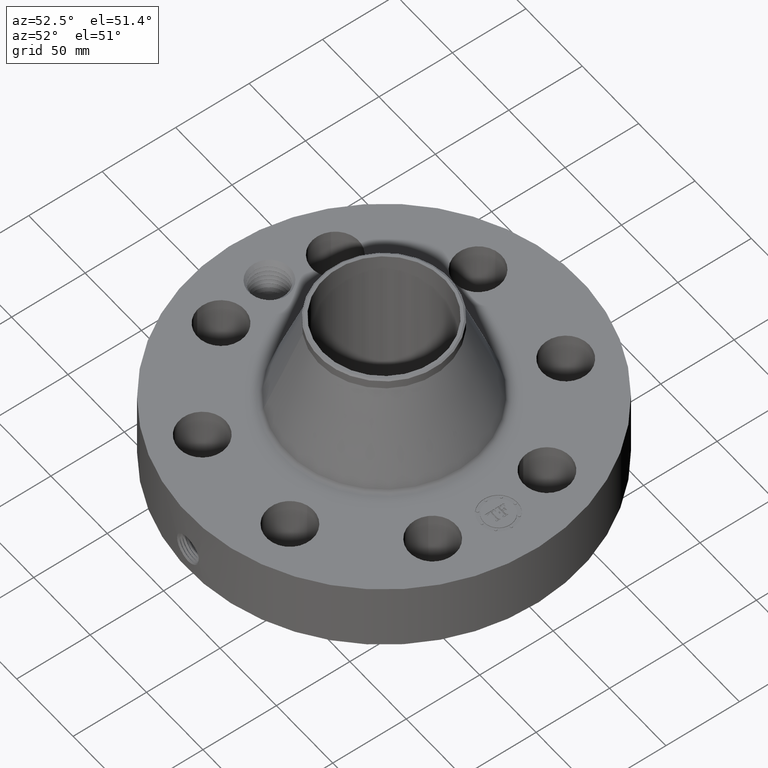
[diagram: clean part render]
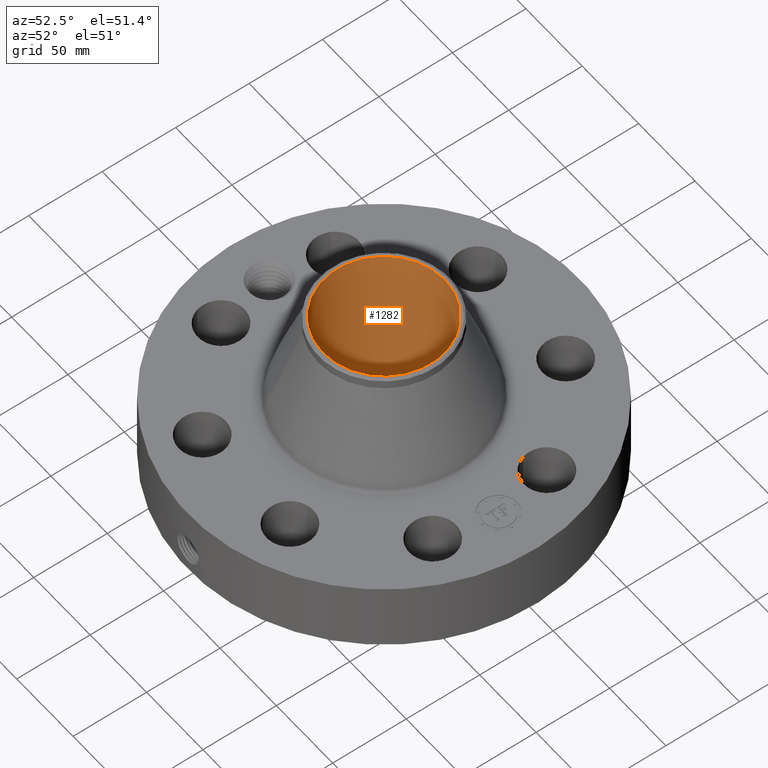
[diagram: same view with one face highlighted and labeled with its STEP entity id]
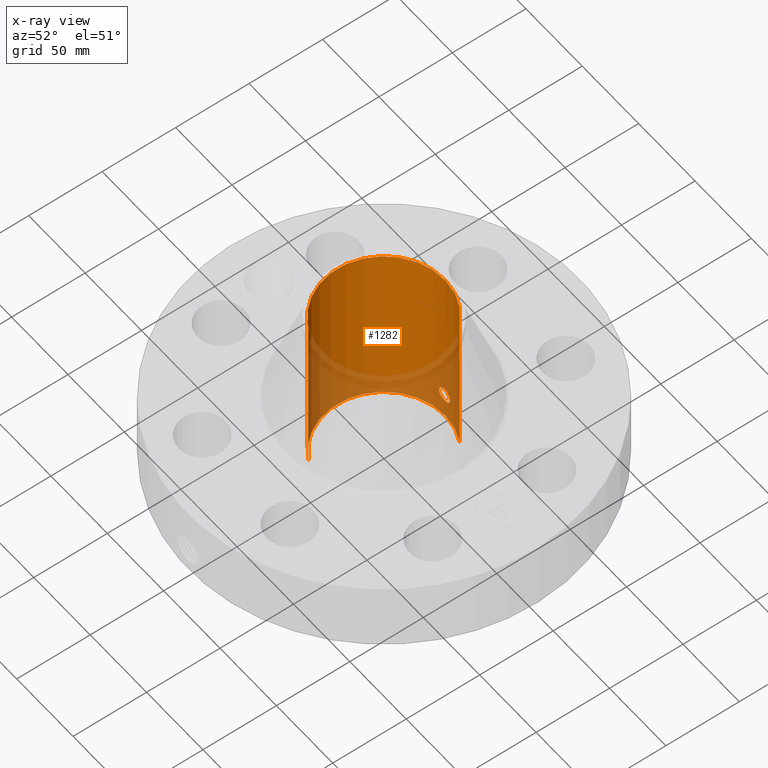
[diagram: x-ray of the same camera — body ghosted, the highlighted face saturated]
A machine part, auxiliary view. The second image highlights one B-rep face of the part: STEP entity #1282.
The next image is the same camera in x-ray: the body ghosted, the highlighted face saturated — about 30% of this face is hidden behind the body in this view.
In plain terms, the highlighted cylindrical surface (partial cylindrical patch) has radius 41.402 mm, axis along (0, 0, -1).
Its self-contained STEP definition (entity closure, byte-faithful):
#258=AXIS2_PLACEMENT_3D('Circle Axis2P3D',#256,#257,$) ;
#1159=AXIS2_PLACEMENT_3D('Cylinder Axis2P3D',#1156,#1157,#1158) ;
#1231=AXIS2_PLACEMENT_3D('Circle Axis2P3D',#1229,#1230,$) ;
#251=CARTESIAN_POINT('Vertex',(0.781463627928,1.43045957589,0.250000000001)) ;
#253=CARTESIAN_POINT('Vertex',(-0.781463627928,-1.43045957589,0.250000000001)) ;
#256=CARTESIAN_POINT('Axis2P3D Location',(0.,0.,0.250000000001)) ;
#1156=CARTESIAN_POINT('Axis2P3D Location',(0.,0.,2.56000000001)) ;
#1165=CARTESIAN_POINT('Vertex',(0.781463627928,1.43045957589,4.87000000002)) ;
#1167=CARTESIAN_POINT('Vertex',(-0.781463627928,-1.43045957589,4.87000000002)) ;
#1170=CARTESIAN_POINT('Line Origine',(0.781463627928,1.43045957589,2.56000000001)) ;
#1175=CARTESIAN_POINT('Line Origine',(-0.781463627928,-1.43045957589,2.56000000001)) ;
#1229=CARTESIAN_POINT('Axis2P3D Location',(0.,0.,4.87000000002)) ;
#1241=CARTESIAN_POINT('Control Point',(0.164546730355,1.62167332516,1.02989228849)) ;
#1242=CARTESIAN_POINT('Control Point',(0.153730904129,1.62277077729,1.0496905256)) ;
#1243=CARTESIAN_POINT('Control Point',(0.139942349404,1.62407876481,1.06785305461)) ;
#1244=CARTESIAN_POINT('Control Point',(0.123505340179,1.6254644111,1.08379435675)) ;
#1245=CARTESIAN_POINT('Control Point',(0.0771149468118,1.62865979876,1.11682180557)) ;
#1246=CARTESIAN_POINT('Control Point',(0.0210941914863,1.63041284554,1.13100701308)) ;
#1247=CARTESIAN_POINT('Control Point',(-0.0139425212457,1.6304972922,1.13166330221)) ;
#1248=CARTESIAN_POINT('Control Point',(-0.0704792362533,1.62897951384,1.11957422647)) ;
#1249=CARTESIAN_POINT('Control Point',(-0.118085597954,1.62587625767,1.08828178895)) ;
#1250=CARTESIAN_POINT('Control Point',(-0.135115102468,1.62449678863,1.07294827408)) ;
#1251=CARTESIAN_POINT('Control Point',(-0.174462073883,1.62087059832,1.02491440309)) ;
#1252=CARTESIAN_POINT('Control Point',(-0.192229414381,1.61861986851,0.963955475375)) ;
#1253=CARTESIAN_POINT('Control Point',(-0.192985142735,1.61851751906,0.923157994587)) ;
#1254=CARTESIAN_POINT('Control Point',(-0.183175157008,1.61978314997,0.884206817778)) ;
#1255=CARTESIAN_POINT('Control Point',(-0.164546730355,1.62167332516,0.850107711515)) ;
#1256=CARTESIAN_POINT('Vertex',(0.164546730355,1.62167332516,1.02989228849)) ;
#1258=CARTESIAN_POINT('Vertex',(-0.164546730355,1.62167332516,0.850107711515)) ;
#1262=CARTESIAN_POINT('Control Point',(-0.164546730355,1.62167332516,0.850107711515)) ;
#1263=CARTESIAN_POINT('Control Point',(-0.153730904126,1.62277077729,0.830309474403)) ;
#1264=CARTESIAN_POINT('Control Point',(-0.139942349398,1.62407876481,0.81214694539)) ;
#1265=CARTESIAN_POINT('Control Point',(-0.123505340187,1.62546441109,0.796205643265)) ;
#1266=CARTESIAN_POINT('Control Point',(-0.0771149468165,1.62865979876,0.763178194436)) ;
#1267=CARTESIAN_POINT('Control Point',(-0.0210941914858,1.63041284554,0.748992986923)) ;
#1268=CARTESIAN_POINT('Control Point',(0.0139425212466,1.6304972922,0.748336697801)) ;
#1269=CARTESIAN_POINT('Control Point',(0.0704792362491,1.62897951384,0.760425773536)) ;
#1270=CARTESIAN_POINT('Control Point',(0.118085597946,1.62587625767,0.791718211054)) ;
#1271=CARTESIAN_POINT('Control Point',(0.135115102475,1.62449678863,0.807051725935)) ;
#1272=CARTESIAN_POINT('Control Point',(0.17446207388,1.62087059832,0.855085596922)) ;
#1273=CARTESIAN_POINT('Control Point',(0.192229414377,1.61861986851,0.916044524619)) ;
#1274=CARTESIAN_POINT('Control Point',(0.192985142732,1.61851751906,0.956842005435)) ;
#1275=CARTESIAN_POINT('Control Point',(0.183175157005,1.61978314997,0.995793182235)) ;
#1276=CARTESIAN_POINT('Control Point',(0.164546730355,1.62167332516,1.02989228849)) ;
#257=DIRECTION('Axis2P3D Direction',(0.,0.,-0.0393700787402)) ;
#1157=DIRECTION('Axis2P3D Direction',(0.,0.,-0.0393700787402)) ;
#1158=DIRECTION('Axis2P3D XDirection',(-0.0188750212049,-0.0345504945626,0.)) ;
#1171=DIRECTION('Vector Direction',(0.,0.,-0.0393700787402)) ;
#1176=DIRECTION('Vector Direction',(0.,0.,-0.0393700787402)) ;
#1230=DIRECTION('Axis2P3D Direction',(0.,0.,-0.0393700787402)) ;
#1172=VECTOR('Line Direction',#1171,0.0393700787402) ;
#1177=VECTOR('Line Direction',#1176,0.0393700787402) ;
#1235=ORIENTED_EDGE('',*,*,#1233,.F.) ;
#1236=ORIENTED_EDGE('',*,*,#1179,.T.) ;
#1237=ORIENTED_EDGE('',*,*,#260,.T.) ;
#1238=ORIENTED_EDGE('',*,*,#1174,.F.) ;
#1279=ORIENTED_EDGE('',*,*,#1260,.F.) ;
#1280=ORIENTED_EDGE('',*,*,#1277,.F.) ;
#1281=FACE_BOUND('',#1278,.T.) ;
#1282=ADVANCED_FACE('PartBody',(#1239,#1281),#1160,.F.) ;
#1240=B_SPLINE_CURVE_WITH_KNOTS('',5,(#1241,#1242,#1243,#1244,#1245,#1246,#1247,#1248,#1249,#1250,#1251,#1252,#1253,#1254,#1255),.UNSPECIFIED.,.F.,.U.,(6,3,3,3,6),(0.,4.05667776978,10.1296924011,14.1893661881,21.1763057625),.UNSPECIFIED.) ;
#1261=B_SPLINE_CURVE_WITH_KNOTS('',5,(#1262,#1263,#1264,#1265,#1266,#1267,#1268,#1269,#1270,#1271,#1272,#1273,#1274,#1275,#1276),.UNSPECIFIED.,.F.,.U.,(6,3,3,3,6),(0.,4.05667777071,10.129692402,14.1893661881,21.1763057613),.UNSPECIFIED.) ;
#259=CIRCLE('generated circle',#258,1.63000000001) ;
#1232=CIRCLE('generated circle',#1231,1.63000000001) ;
#1160=CYLINDRICAL_SURFACE('generated cylinder',#1159,1.63000000001) ;
#260=EDGE_CURVE('',#254,#252,#259,.T.) ;
#1174=EDGE_CURVE('',#1166,#252,#1173,.T.) ;
#1179=EDGE_CURVE('',#1168,#254,#1178,.T.) ;
#1233=EDGE_CURVE('',#1168,#1166,#1232,.T.) ;
#1260=EDGE_CURVE('',#1257,#1259,#1240,.T.) ;
#1277=EDGE_CURVE('',#1259,#1257,#1261,.T.) ;
#1234=EDGE_LOOP('',(#1235,#1236,#1237,#1238)) ;
#1278=EDGE_LOOP('',(#1279,#1280)) ;
#1239=FACE_OUTER_BOUND('',#1234,.T.) ;
#1173=LINE('Line',#1170,#1172) ;
#1178=LINE('Line',#1175,#1177) ;
#252=VERTEX_POINT('',#251) ;
#254=VERTEX_POINT('',#253) ;
#1166=VERTEX_POINT('',#1165) ;
#1168=VERTEX_POINT('',#1167) ;
#1257=VERTEX_POINT('',#1256) ;
#1259=VERTEX_POINT('',#1258) ;